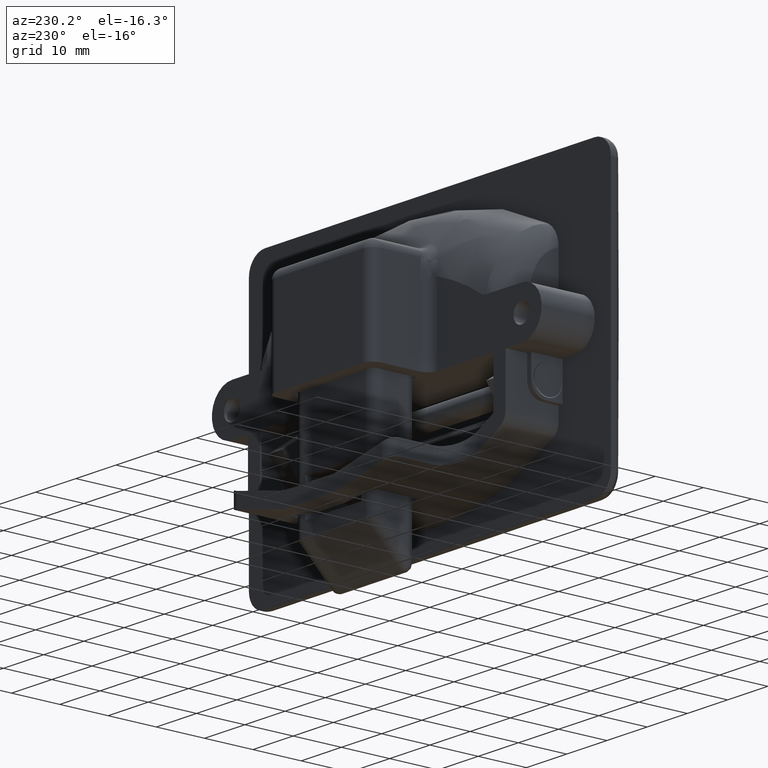
[diagram: clean part render]
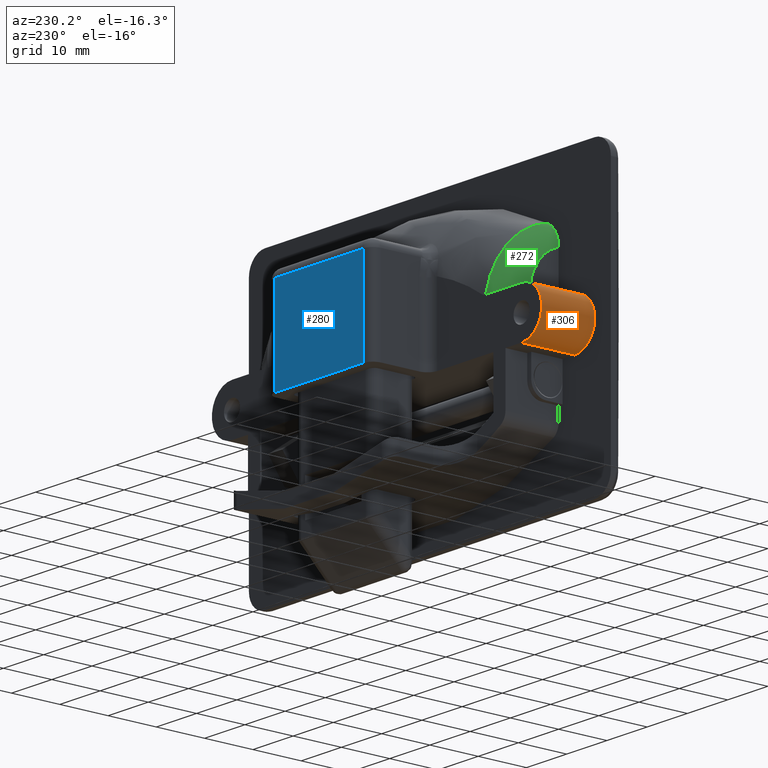
[diagram: same view with three faces highlighted in distinct colors, each labeled with its STEP entity id]
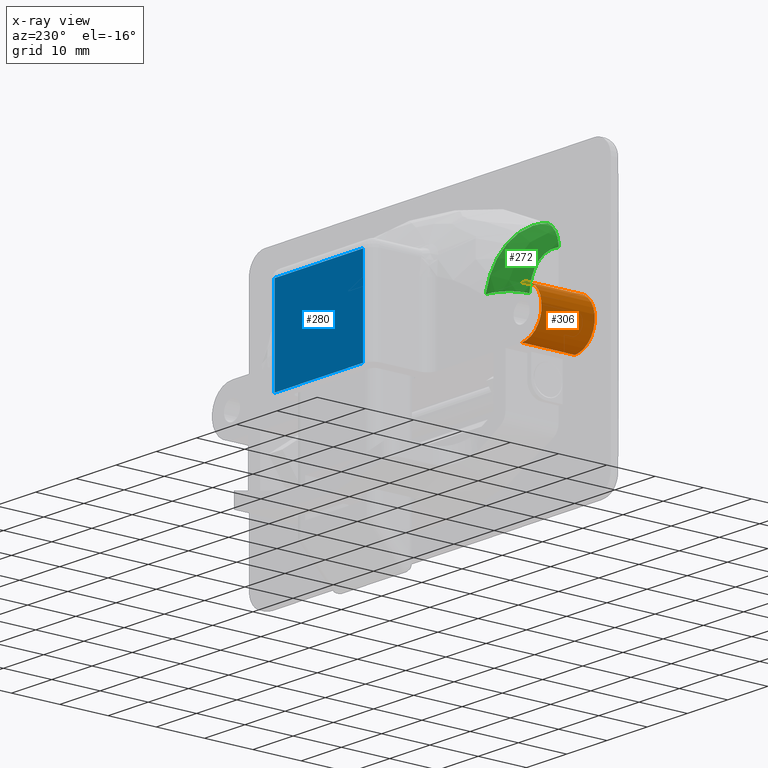
[diagram: x-ray of the same camera — body ghosted, the three highlighted faces saturated]
A machine part, auxiliary view with three faces highlighted in distinct colors.
The next image is the same camera in x-ray (body ghosted, the three faces saturated) — at least one of them is partly hidden behind the body in this view.
Their STEP definitions:

[orange] entity #306 — the highlighted cylindrical surface (edge-blend (fillet) strip) has radius 5 mm, axis along (0, 1, 0).
#306=ADVANCED_FACE('',(#1955),#1954,.T.);
#1954=CYLINDRICAL_SURFACE('',#4489,5.00000000000E+00);
#1955=FACE_OUTER_BOUND('',#4490,.T.);
#4486=CARTESIAN_POINT('',(-3.60000000000E+01,1.00000000000E+03,3.00000000000E+01));
#4487=DIRECTION('',(-0.00000000000E+00,1.00000000000E+00,-0.00000000000E+00));
#4488=DIRECTION('',(-0.00000000000E+00,-0.00000000000E+00,1.00000000000E+00));
#4489=AXIS2_PLACEMENT_3D('',#4486,#4487,#4488);
#4490=EDGE_LOOP('',(#5872,#5873,#5874,#5875));
#5872=ORIENTED_EDGE('',*,*,#6531,.F.);
#5873=ORIENTED_EDGE('',*,*,#6673,.F.);
#5874=ORIENTED_EDGE('',*,*,#6560,.T.);
#5875=ORIENTED_EDGE('',*,*,#6672,.T.);
#6531=EDGE_CURVE('',#9091,#9098,#9099,.T.);
#6560=EDGE_CURVE('',#9295,#9288,#9296,.T.);
#6672=EDGE_CURVE('',#9288,#9098,#10027,.T.);
#6673=EDGE_CURVE('',#9295,#9091,#10033,.T.);
#9091=VERTEX_POINT('',#12362);
#9098=VERTEX_POINT('',#12366);
#9099=CIRCLE('',#12370,5.00000000000E+00);
#9288=VERTEX_POINT('',#12536);
#9295=VERTEX_POINT('',#12540);
#9296=CIRCLE('',#12544,5.00000000000E+00);
#10027=LINE('',#13133,#13134);
#10033=LINE('',#13136,#13137);
#12362=CARTESIAN_POINT('',(-3.60000000000E+01,0.00000000000E+00,3.50000000000E+01));
#12366=CARTESIAN_POINT('',(-3.60000000000E+01,0.00000000000E+00,2.50000000000E+01));
#12367=CARTESIAN_POINT('',(-3.60000000000E+01,0.00000000000E+00,3.00000000000E+01));
#12368=DIRECTION('',(0.00000000000E+00,-1.00000000000E+00,0.00000000000E+00));
#12369=DIRECTION('',(-0.00000000000E+00,-0.00000000000E+00,1.00000000000E+00));
#12370=AXIS2_PLACEMENT_3D('',#12367,#12368,#12369);
#12536=CARTESIAN_POINT('',(-3.60000000000E+01,1.10000000000E+01,2.50000000000E+01));
#12540=CARTESIAN_POINT('',(-3.60000000000E+01,1.10000000000E+01,3.50000000000E+01));
#12541=CARTESIAN_POINT('',(-3.60000000000E+01,1.10000000000E+01,3.00000000000E+01));
#12542=DIRECTION('',(0.00000000000E+00,-1.00000000000E+00,0.00000000000E+00));
#12543=DIRECTION('',(-0.00000000000E+00,-0.00000000000E+00,1.00000000000E+00));
#12544=AXIS2_PLACEMENT_3D('',#12541,#12542,#12543);
#13133=CARTESIAN_POINT('',(-3.60000000000E+01,1.10000000000E+01,2.50000000000E+01));
#13134=VECTOR('',#13135,1.10000000000E+01);
#13135=DIRECTION('',(0.00000000000E+00,-1.00000000000E+00,0.00000000000E+00));
#13136=CARTESIAN_POINT('',(-3.60000000000E+01,1.10000000000E+01,3.50000000000E+01));
#13137=VECTOR('',#13138,1.10000000000E+01);
#13138=DIRECTION('',(0.00000000000E+00,-1.00000000000E+00,0.00000000000E+00));

[blue] entity #280 — the highlighted planar face has unit normal (0, -1, 0).
#280=ADVANCED_FACE('',(#1692),#1691,.F.);
#1691=PLANE('',#4237);
#1692=FACE_OUTER_BOUND('',#4238,.T.);
#4234=CARTESIAN_POINT('',(-1.32000000000E+01,2.30000000000E+01,2.31000000000E+01));
#4235=DIRECTION('',(0.00000000000E+00,-1.00000000000E+00,0.00000000000E+00));
#4236=DIRECTION('',(1.00000000000E+00,0.00000000000E+00,0.00000000000E+00));
#4237=AXIS2_PLACEMENT_3D('',#4234,#4235,#4236);
#4238=EDGE_LOOP('',(#5718,#5719,#5720,#5721));
#5718=ORIENTED_EDGE('',*,*,#6587,.T.);
#5719=ORIENTED_EDGE('',*,*,#6588,.T.);
#5720=ORIENTED_EDGE('',*,*,#6589,.T.);
#5721=ORIENTED_EDGE('',*,*,#6590,.T.);
#6587=EDGE_CURVE('',#9473,#9474,#9475,.T.);
#6588=EDGE_CURVE('',#9474,#9481,#9482,.T.);
#6589=EDGE_CURVE('',#9481,#9488,#9489,.T.);
#6590=EDGE_CURVE('',#9488,#9473,#9495,.T.);
#9473=VERTEX_POINT('',#12691);
#9474=VERTEX_POINT('',#12692);
#9475=LINE('',#12693,#12694);
#9481=VERTEX_POINT('',#12696);
#9482=LINE('',#12697,#12698);
#9488=VERTEX_POINT('',#12700);
#9489=LINE('',#12701,#12702);
#9495=LINE('',#12704,#12705);
#12691=CARTESIAN_POINT('',(-1.10000000000E+01,2.30000000000E+01,4.40000000000E+01));
#12692=CARTESIAN_POINT('',(1.10000000000E+01,2.30000000000E+01,4.40000000000E+01));
#12693=CARTESIAN_POINT('',(-1.10000000000E+01,2.30000000000E+01,4.40000000000E+01));
#12694=VECTOR('',#12695,2.20000000000E+01);
#12695=DIRECTION('',(1.00000000000E+00,0.00000000000E+00,0.00000000000E+00));
#12696=CARTESIAN_POINT('',(1.10000000000E+01,2.30000000000E+01,2.50000000001E+01));
#12697=CARTESIAN_POINT('',(1.10000000000E+01,2.30000000000E+01,4.40000000000E+01));
#12698=VECTOR('',#12699,1.89999999999E+01);
#12699=DIRECTION('',(0.00000000000E+00,0.00000000000E+00,-1.00000000000E+00));
#12700=CARTESIAN_POINT('',(-1.10000000000E+01,2.30000000000E+01,2.50000000000E+01));
#12701=CARTESIAN_POINT('',(1.10000000000E+01,2.30000000000E+01,2.50000000001E+01));
#12702=VECTOR('',#12703,2.20000000000E+01);
#12703=DIRECTION('',(-1.00000000000E+00,0.00000000000E+00,-2.03134478935E-12));
#12704=CARTESIAN_POINT('',(-1.10000000000E+01,2.30000000000E+01,2.50000000000E+01));
#12705=VECTOR('',#12706,1.90000000000E+01);
#12706=DIRECTION('',(0.00000000000E+00,0.00000000000E+00,1.00000000000E+00));

[green] entity #272 — the highlighted face is a freeform B-spline surface patch.
#272=ADVANCED_FACE('',(#1610),#1609,.T.);
#1609=( BOUNDED_SURFACE() B_SPLINE_SURFACE( 3,2,((#4062,#4063,#4064),(#4065,#4066,#4067),(#4068,#4069,#4070),(#4071,#4072,#4073),(#4074,#4075,#4076),(#4077,#4078,#4079),(#4080,#4081,#4082),(#4083,#4084,#4085),(#4086,#4087,#4088),(#4089,#4090,#4091),(#4092,#4093,#4094),(#4095,#4096,#4097),(#4098,#4099,#4100),(#4101,#4102,#4103),(#4104,#4105,#4106),(#4107,#4108,#4109),(#4110,#4111,#4112),(#4113,#4114,#4115),(#4116,#4117,#4118),(#4119,#4120,#4121),(#4122,#4123,#4124),(#4125,#4126,#4127)), .UNSPECIFIED.,.F.,.F.,.F.) B_SPLINE_SURFACE_WITH_KNOTS((4,2,2,2,2,2,2,2,2,2,4),(3,3),(2.43038170120E-02,2.58408163176E-02,2.73778156232E-02,2.89148149289E-02,3.04518142345E-02,3.19888135401E-02,3.27573131929E-02,3.35258128458E-02,3.50628121514E-02,3.58313118042E-02,3.65998114570E-02),(0.00000000000E+00,1.00000000000E+00), .UNSPECIFIED. ) GEOMETRIC_REPRESENTATION_ITEM() RATIONAL_B_SPLINE_SURFACE(((1.00000000000E+00,7.10541914419E-01,1.00000000000E+00),(1.00000000000E+00,7.21099108526E-01,1.00000000000E+00),(1.00000000000E+00,7.31182044407E-01,1.00000000000E+00),(1.00000000000E+00,7.50523252889E-01,1.00000000000E+00),(1.00000000000E+00,7.59838821139E-01,1.00000000000E+00),(1.00000000000E+00,7.77181576348E-01,1.00000000000E+00),(1.00000000000E+00,7.85275113627E-01,1.00000000000E+00),(1.00000000000E+00,8.00449320352E-01,1.00000000000E+00),(1.00000000000E+00,8.07544406373E-01,1.00000000000E+00),(1.00000000000E+00,8.20731802649E-01,1.00000000000E+00),(1.00000000000E+00,8.26652848343E-01,1.00000000000E+00),(1.00000000000E+00,8.34627587997E-01,1.00000000000E+00),(1.00000000000E+00,8.37133680329E-01,1.00000000000E+00),(1.00000000000E+00,8.41845931898E-01,1.00000000000E+00),(1.00000000000E+00,8.44057978035E-01,1.00000000000E+00),(1.00000000000E+00,8.50107064797E-01,1.00000000000E+00),(1.00000000000E+00,8.53415151558E-01,1.00000000000E+00),(1.00000000000E+00,8.57343129800E-01,1.00000000000E+00),(1.00000000000E+00,8.58478629099E-01,1.00000000000E+00),(1.00000000000E+00,8.60391082610E-01,1.00000000000E+00),(1.00000000000E+00,8.61149974661E-01,1.00000000000E+00),(1.00000000000E+00,8.61717853608E-01,1.00000000000E+00))) REPRESENTATION_ITEM('') SURFACE() );
#1610=FACE_OUTER_BOUND('',#4128,.T.);
#4062=CARTESIAN_POINT('',(-3.20000000000E+01,5.99883584744E+00,3.48260414149E+01));
#4063=CARTESIAN_POINT('',(-3.20000000000E+01,1.09498868752E+01,3.48953939209E+01));
#4064=CARTESIAN_POINT('',(-2.70486981215E+01,1.09981082521E+01,3.48960693882E+01));
#4065=CARTESIAN_POINT('',(-3.20000000000E+01,5.99164131717E+00,3.53396564235E+01));
#4066=CARTESIAN_POINT('',(-3.20000000000E+01,1.07934377631E+01,3.56108757814E+01));
#4067=CARTESIAN_POINT('',(-2.71987319223E+01,1.09864171119E+01,3.56263608394E+01));
#4068=CARTESIAN_POINT('',(-3.20000000000E+01,5.95127512883E+00,3.58519553682E+01));
#4069=CARTESIAN_POINT('',(-3.20000000000E+01,1.05985902030E+01,3.63219767410E+01));
#4070=CARTESIAN_POINT('',(-2.73453366148E+01,1.09208220835E+01,3.63589603530E+01));
#4071=CARTESIAN_POINT('',(-3.20000000000E+01,5.79964237734E+00,3.68737272217E+01));
#4072=CARTESIAN_POINT('',(-3.20000000000E+01,1.01264205550E+01,3.77163611246E+01));
#4073=CARTESIAN_POINT('',(-2.76319163254E+01,1.06744188640E+01,3.78276372490E+01));
#4074=CARTESIAN_POINT('',(-3.20000000000E+01,5.68691328572E+00,3.73866975866E+01));
#4075=CARTESIAN_POINT('',(-3.20000000000E+01,9.84780624606E+00,3.84068277731E+01));
#4076=CARTESIAN_POINT('',(-2.77727984133E+01,1.04912340891E+01,3.85688317600E+01));
#4077=CARTESIAN_POINT('',(-3.20000000000E+01,5.39172433081E+00,3.83763604566E+01));
#4078=CARTESIAN_POINT('',(-3.20000000000E+01,9.21630264098E+00,3.97211196591E+01));
#4079=CARTESIAN_POINT('',(-2.80393600982E+01,1.00115520377E+01,4.00051881087E+01));
#4080=CARTESIAN_POINT('',(-3.20000000000E+01,5.20930706079E+00,3.88563232357E+01));
#4081=CARTESIAN_POINT('',(-3.20000000000E+01,8.86346034263E+00,4.03523081323E+01));
#4082=CARTESIAN_POINT('',(-2.81659943993E+01,9.71512397302E+00,4.07050040833E+01));
#4083=CARTESIAN_POINT('',(-3.20000000000E+01,4.77071005675E+00,3.97847536549E+01));
#4084=CARTESIAN_POINT('',(-3.20000000000E+01,8.07375323296E+00,4.15602676548E+01));
#4085=CARTESIAN_POINT('',(-2.84066155033E+01,9.00240384298E+00,4.20637337772E+01));
#4086=CARTESIAN_POINT('',(-3.20000000000E+01,4.51398433008E+00,4.02342064311E+01));
#4087=CARTESIAN_POINT('',(-3.20000000000E+01,7.63656842475E+00,4.21408848983E+01));
#4088=CARTESIAN_POINT('',(-2.85208449142E+01,8.58522453633E+00,4.27241049961E+01));
#4089=CARTESIAN_POINT('',(-3.20000000000E+01,3.91855974592E+00,4.10930939971E+01));
#4090=CARTESIAN_POINT('',(-3.20000000000E+01,6.66540984275E+00,4.32410432334E+01));
#4091=CARTESIAN_POINT('',(-2.87355721501E+01,7.61765958718E+00,4.39899907178E+01));
#4092=CARTESIAN_POINT('',(-3.20000000000E+01,3.58784212912E+00,4.14912353945E+01));
#4093=CARTESIAN_POINT('',(-3.20000000000E+01,6.14436133817E+00,4.37487617245E+01));
#4094=CARTESIAN_POINT('',(-2.88332666655E+01,7.08024345918E+00,4.45788371253E+01));
#4095=CARTESIAN_POINT('',(-3.20000000000E+01,3.03987891213E+00,4.20392378439E+01));
#4096=CARTESIAN_POINT('',(-3.20000000000E+01,5.30109210198E+00,4.44447760563E+01));
#4097=CARTESIAN_POINT('',(-2.89659614438E+01,6.18980323253E+00,4.53912114301E+01));
#4098=CARTESIAN_POINT('',(-3.20000000000E+01,2.84853115393E+00,4.22136605157E+01));
#4099=CARTESIAN_POINT('',(-3.20000000000E+01,5.01090245905E+00,4.46651774118E+01));
#4100=CARTESIAN_POINT('',(-2.90078724738E+01,5.87886312469E+00,4.56501265558E+01));
#4101=CARTESIAN_POINT('',(-3.20000000000E+01,2.44738155448E+00,4.25450039312E+01));
#4102=CARTESIAN_POINT('',(-3.20000000000E+01,4.40873085094E+00,4.50827594424E+01));
#4103=CARTESIAN_POINT('',(-2.90869902175E+01,5.22699502647E+00,4.61425007494E+01));
#4104=CARTESIAN_POINT('',(-3.20000000000E+01,2.23669682939E+00,4.27023630225E+01));
#4105=CARTESIAN_POINT('',(-3.20000000000E+01,4.09534933991E+00,4.52807825364E+01));
#4106=CARTESIAN_POINT('',(-2.91242980457E+01,4.88463234777E+00,4.63766149357E+01));
#4107=CARTESIAN_POINT('',(-3.20000000000E+01,1.58985993387E+00,4.31364371959E+01));
#4108=CARTESIAN_POINT('',(-3.20000000000E+01,3.14329378715E+00,4.58244516106E+01));
#4109=CARTESIAN_POINT('',(-2.92266575874E+01,3.83352239251E+00,4.70229912006E+01));
#4110=CARTESIAN_POINT('',(-3.20000000000E+01,1.13531512716E+00,4.33790857498E+01));
#4111=CARTESIAN_POINT('',(-3.20000000000E+01,2.48141864892E+00,4.61288596002E+01));
#4112=CARTESIAN_POINT('',(-2.92831056352E+01,3.09488708126E+00,4.73851141593E+01));
#4113=CARTESIAN_POINT('',(-3.20000000000E+01,4.16967787612E-01,4.36698513737E+01));
#4114=CARTESIAN_POINT('',(-3.20000000000E+01,1.44474541373E+00,4.64924535325E+01));
#4115=CARTESIAN_POINT('',(-2.93503552790E+01,1.92757265505E+00,4.78194407875E+01));
#4116=CARTESIAN_POINT('',(-3.20000000000E+01,1.71392307687E-01,4.37544958707E+01));
#4117=CARTESIAN_POINT('',(-3.20000000000E+01,1.09227691421E+00,4.65980964239E+01));
#4118=CARTESIAN_POINT('',(-2.93698464221E+01,1.52851249977E+00,4.79459642122E+01));
#4119=CARTESIAN_POINT('',(-3.20000000000E+01,-3.32830361894E-01,4.38975888622E+01));
#4120=CARTESIAN_POINT('',(-3.20000000000E+01,3.71112185025E-01,4.67764328232E+01));
#4121=CARTESIAN_POINT('',(-2.94027190071E+01,7.09150662140E-01,4.81599322397E+01));
#4122=CARTESIAN_POINT('',(-3.20000000000E+01,-5.86866662799E-01,4.39546830644E+01));
#4123=CARTESIAN_POINT('',(-3.20000000000E+01,8.72272242770E-03,4.68475886178E+01));
#4124=CARTESIAN_POINT('',(-2.94157901641E+01,2.96341667680E-01,4.82453509486E+01));
#4125=CARTESIAN_POINT('',(-3.20000000000E+01,-8.41779271752E-01,4.39974780632E+01));
#4126=CARTESIAN_POINT('',(-3.20000000000E+01,-3.54350486821E-01,4.69008954270E+01));
#4127=CARTESIAN_POINT('',(-2.94255765923E+01,-1.17891316597E-01,4.83093876661E+01));
#4128=EDGE_LOOP('',(#5658,#5659,#5660,#5661));
#5658=ORIENTED_EDGE('',*,*,#6528,.F.);
#5659=ORIENTED_EDGE('',*,*,#6544,.F.);
#5660=ORIENTED_EDGE('',*,*,#6545,.F.);
#5661=ORIENTED_EDGE('',*,*,#6546,.F.);
#6528=EDGE_CURVE('',#9070,#9077,#9078,.T.);
#6544=EDGE_CURVE('',#9188,#9070,#9189,.T.);
#6545=EDGE_CURVE('',#9195,#9188,#9196,.T.);
#6546=EDGE_CURVE('',#9077,#9195,#9202,.T.);
#9070=VERTEX_POINT('',#12338);
#9077=VERTEX_POINT('',#12343);
#9078=(BOUNDED_CURVE() B_SPLINE_CURVE(3,(#12344,#12345,#12346,#12347,#12348,#12349,#12350,#12351,#12352,#12353,#12354,#12355,#12356,#12357),.UNSPECIFIED.,.F.,.F.) B_SPLINE_CURVE_WITH_KNOTS((4,2,2,2,2,2,4),(0.00000000000E+00,1.34919558329E-03,2.02379337494E-03,2.69839116658E-03,4.04758674987E-03,4.72218454152E-03,5.39678233316E-03),.UNSPECIFIED.) CURVE() GEOMETRIC_REPRESENTATION_ITEM() RATIONAL_B_SPLINE_CURVE((1.00000000000E+00,1.00000000000E+00,1.00000000000E+00,1.00000000000E+00,1.00000000000E+00,1.00000000000E+00,1.00000000000E+00,1.00000000000E+00,1.00000000000E+00,1.00000000000E+00,1.00000000000E+00,1.00000000000E+00,1.00000000000E+00,1.00000000000E+00)) REPRESENTATION_ITEM('') );
#9188=VERTEX_POINT('',#12421);
#9189=(BOUNDED_CURVE() B_SPLINE_CURVE(3,(#12422,#12423,#12424,#12425,#12426,#12427,#12428,#12429,#12430,#12431,#12432,#12433,#12434,#12435,#12436,#12437,#12438,#12439,#12440,#12441,#12442,#12443,#12444,#12445),.UNSPECIFIED.,.F.,.F.) B_SPLINE_CURVE_WITH_KNOTS((4,2,2,2,2,2,2,2,2,2,2,4),(0.00000000000E+00,2.36495131429E-03,3.54742697144E-03,4.72990262859E-03,7.09485394288E-03,8.27732960003E-03,9.45980525717E-03,1.18247565715E-02,1.30072322286E-02,1.41897078858E-02,1.65546592001E-02,1.89196105143E-02),.UNSPECIFIED.) CURVE() GEOMETRIC_REPRESENTATION_ITEM() RATIONAL_B_SPLINE_CURVE((1.00000000000E+00,1.00000000000E+00,1.00000000000E+00,1.00000000000E+00,1.00000000000E+00,1.00000000000E+00,1.00000000000E+00,1.00000000000E+00,1.00000000000E+00,1.00000000000E+00,1.00000000000E+00,1.00000000000E+00,1.00000000000E+00,1.00000000000E+00,1.00000000000E+00,1.00000000000E+00,1.00000000000E+00,1.00000000000E+00,1.00000000000E+00,1.00000000000E+00,1.00000000000E+00,1.00000000000E+00,1.00000000000E+00,1.00000000000E+00)) REPRESENTATION_ITEM('') );
#9195=VERTEX_POINT('',#12446);
#9196=(BOUNDED_CURVE() B_SPLINE_CURVE(3,(#12447,#12448,#12449,#12450,#12451,#12452,#12453,#12454,#12455,#12456,#12457,#12458,#12459,#12460,#12461,#12462,#12463,#12464,#12465,#12466),.UNSPECIFIED.,.F.,.F.) B_SPLINE_CURVE_WITH_KNOTS((4,2,2,2,2,2,2,2,2,4),(9.54097911787E-18,9.67770094829E-04,1.45165514224E-03,1.93554018966E-03,2.90331028449E-03,3.87108037932E-03,4.83885047415E-03,5.80662056897E-03,6.77439066380E-03,7.74216075863E-03),.UNSPECIFIED.) CURVE() GEOMETRIC_REPRESENTATION_ITEM() RATIONAL_B_SPLINE_CURVE((1.00000000000E+00,1.00000000000E+00,1.00000000000E+00,1.00000000000E+00,1.00000000000E+00,1.00000000000E+00,1.00000000000E+00,1.00000000000E+00,1.00000000000E+00,1.00000000000E+00,1.00000000000E+00,1.00000000000E+00,1.00000000000E+00,1.00000000000E+00,1.00000000000E+00,1.00000000000E+00,1.00000000000E+00,1.00000000000E+00,1.00000000000E+00,1.00000000000E+00)) REPRESENTATION_ITEM('') );
#9202=(BOUNDED_CURVE() B_SPLINE_CURVE(3,(#12467,#12468,#12469,#12470,#12471,#12472,#12473,#12474,#12475,#12476,#12477,#12478,#12479,#12480,#12481,#12482,#12483,#12484,#12485,#12486),.UNSPECIFIED.,.F.,.F.) B_SPLINE_CURVE_WITH_KNOTS((4,2,2,2,2,2,2,2,2,4),(6.69008660638E-19,1.41561493267E-03,2.12342239901E-03,2.83122986534E-03,4.24684479802E-03,4.95465226435E-03,5.66245973069E-03,8.49368959603E-03,9.90930452870E-03,1.13249194614E-02),.UNSPECIFIED.) CURVE() GEOMETRIC_REPRESENTATION_ITEM() RATIONAL_B_SPLINE_CURVE((1.00000000000E+00,1.00000000000E+00,1.00000000000E+00,1.00000000000E+00,1.00000000000E+00,1.00000000000E+00,1.00000000000E+00,1.00000000000E+00,1.00000000000E+00,1.00000000000E+00,1.00000000000E+00,1.00000000000E+00,1.00000000000E+00,1.00000000000E+00,1.00000000000E+00,1.00000000000E+00,1.00000000000E+00,1.00000000000E+00,1.00000000000E+00,1.00000000000E+00)) REPRESENTATION_ITEM('') );
#12338=CARTESIAN_POINT('',(-2.94227015689E+01,0.00000000000E+00,4.82905788110E+01));
#12343=CARTESIAN_POINT('',(-3.20000000000E+01,0.00000000000E+00,4.38026213322E+01));
#12344=CARTESIAN_POINT('',(-2.94227015689E+01,-7.27045269108E-16,4.82905788110E+01));
#12345=CARTESIAN_POINT('',(-2.98203683136E+01,-7.27045269108E-16,4.80668209139E+01));
#12346=CARTESIAN_POINT('',(-3.01785033988E+01,4.19068089751E-32,4.77944124651E+01));
#12347=CARTESIAN_POINT('',(-3.06586150192E+01,-0.00000000000E+00,4.73155394226E+01));
#12348=CARTESIAN_POINT('',(-3.08096643059E+01,0.00000000000E+00,4.71428925036E+01));
#12349=CARTESIAN_POINT('',(-3.10837547541E+01,-0.00000000000E+00,4.67833459290E+01));
#12350=CARTESIAN_POINT('',(-3.12078739202E+01,0.00000000000E+00,4.65956035084E+01));
#12351=CARTESIAN_POINT('',(-3.15422996509E+01,-0.00000000000E+00,4.60089906703E+01));
#12352=CARTESIAN_POINT('',(-3.17153788117E+01,0.00000000000E+00,4.55817704635E+01));
#12353=CARTESIAN_POINT('',(-3.18857109935E+01,-0.00000000000E+00,4.49282563808E+01));
#12354=CARTESIAN_POINT('',(-3.19283589851E+01,0.00000000000E+00,4.47072184350E+01));
#12355=CARTESIAN_POINT('',(-3.19855441782E+01,-0.00000000000E+00,4.42587762281E+01));
#12356=CARTESIAN_POINT('',(-3.20000000000E+01,-0.00000000000E+00,4.40306007455E+01));
#12357=CARTESIAN_POINT('',(-3.20000000000E+01,0.00000000000E+00,4.38026213322E+01));
#12421=CARTESIAN_POINT('',(-2.70700268787E+01,1.10000000000E+01,3.50000000000E+01));
#12422=CARTESIAN_POINT('',(-2.70700236969E+01,1.09960783903E+01,3.50000000000E+01));
#12423=CARTESIAN_POINT('',(-2.72291967383E+01,1.09781727341E+01,3.57766902681E+01));
#12424=CARTESIAN_POINT('',(-2.73825346770E+01,1.08994950631E+01,3.65463409681E+01));
#12425=CARTESIAN_POINT('',(-2.76045947007E+01,1.06899556439E+01,3.76900494330E+01));
#12426=CARTESIAN_POINT('',(-2.76775294972E+01,1.06044189871E+01,3.80707673565E+01));
#12427=CARTESIAN_POINT('',(-2.78196689401E+01,1.04033671212E+01,3.88222107846E+01));
#12428=CARTESIAN_POINT('',(-2.78885988658E+01,1.02883770386E+01,3.91914414739E+01));
#12429=CARTESIAN_POINT('',(-2.80893970204E+01,9.90083760294E+00,4.02799749308E+01));
#12430=CARTESIAN_POINT('',(-2.82153051133E+01,9.58601313537E+00,4.09802532170E+01));
#12431=CARTESIAN_POINT('',(-2.83933073020E+01,9.02702909579E+00,4.19913867204E+01));
#12432=CARTESIAN_POINT('',(-2.84508232921E+01,8.82617175783E+00,4.23218513959E+01));
#12433=CARTESIAN_POINT('',(-2.85623012078E+01,8.39408816339E+00,4.29689835031E+01));
#12434=CARTESIAN_POINT('',(-2.86165313509E+01,8.16151446457E+00,4.32872520607E+01));
#12435=CARTESIAN_POINT('',(-2.87714934198E+01,7.42701700135E+00,4.42054731006E+01));
#12436=CARTESIAN_POINT('',(-2.88646502698E+01,6.88948587484E+00,4.47694690579E+01));
#12437=CARTESIAN_POINT('',(-2.89903932374E+01,6.01036387285E+00,4.55419646054E+01));
#12438=CARTESIAN_POINT('',(-2.90299608975E+01,5.70512062428E+00,4.57871481081E+01));
#12439=CARTESIAN_POINT('',(-2.91044302729E+01,5.06918689627E+00,4.62517959144E+01));
#12440=CARTESIAN_POINT('',(-2.91392644324E+01,4.73864198894E+00,4.64708541065E+01));
#12441=CARTESIAN_POINT('',(-2.92348019326E+01,3.72882509375E+00,4.70751623393E+01));
#12442=CARTESIAN_POINT('',(-2.92874266051E+01,3.02501993593E+00,4.74129665414E+01));
#12443=CARTESIAN_POINT('',(-2.93715009176E+01,1.55520309741E+00,4.79560645333E+01));
#12444=CARTESIAN_POINT('',(-2.94029823338E+01,7.84062985479E-01,4.81615973871E+01));
#12445=CARTESIAN_POINT('',(-2.94227015689E+01,-2.74110314157E-16,4.82905788110E+01));
#12446=CARTESIAN_POINT('',(-3.20000000000E+01,5.99511957681E+00,3.50000000000E+01));
#12447=CARTESIAN_POINT('',(-3.20000000000E+01,5.99511957681E+00,3.50000000000E+01));
#12448=CARTESIAN_POINT('',(-3.20000000000E+01,6.32235273793E+00,3.50000000000E+01));
#12449=CARTESIAN_POINT('',(-3.19682113770E+01,6.64417307667E+00,3.50000000000E+01));
#12450=CARTESIAN_POINT('',(-3.18747923861E+01,7.11911585680E+00,3.50000000000E+01));
#12451=CARTESIAN_POINT('',(-3.18359744324E+01,7.27612269248E+00,3.50000000000E+01));
#12452=CARTESIAN_POINT('',(-3.17426447052E+01,7.58746409148E+00,3.50000000000E+01));
#12453=CARTESIAN_POINT('',(-3.16878361080E+01,7.74233149315E+00,3.50000000000E+01));
#12454=CARTESIAN_POINT('',(-3.15030534377E+01,8.19314701726E+00,3.50000000000E+01));
#12455=CARTESIAN_POINT('',(-3.13522633583E+01,8.47839408072E+00,3.50000000000E+01));
#12456=CARTESIAN_POINT('',(-3.09961148031E+01,9.01864680840E+00,3.50000000000E+01));
#12457=CARTESIAN_POINT('',(-3.07886051981E+01,9.27504464447E+00,3.50000000000E+01));
#12458=CARTESIAN_POINT('',(-3.03348813467E+01,9.73568436476E+00,3.50000000000E+01));
#12459=CARTESIAN_POINT('',(-3.00873272165E+01,9.94275523462E+00,3.50000000000E+01));
#12460=CARTESIAN_POINT('',(-2.95500664982E+01,1.03095360424E+01,3.50000000000E+01));
#12461=CARTESIAN_POINT('',(-2.92626551694E+01,1.04668570627E+01,3.50000000000E+01));
#12462=CARTESIAN_POINT('',(-2.86694026510E+01,1.07206175252E+01,3.50000000000E+01));
#12463=CARTESIAN_POINT('',(-2.83601017307E+01,1.08190798807E+01,3.50000000000E+01));
#12464=CARTESIAN_POINT('',(-2.77206793234E+01,1.09551350813E+01,3.50000000000E+01));
#12465=CARTESIAN_POINT('',(-2.73972279509E+01,1.09914945972E+01,3.50000000000E+01));
#12466=CARTESIAN_POINT('',(-2.70700236969E+01,1.09960783903E+01,3.50000000000E+01));
#12467=CARTESIAN_POINT('',(-3.20000000000E+01,-8.41279272649E-16,4.38026213322E+01));
#12468=CARTESIAN_POINT('',(-3.20000000000E+01,4.59938865903E-01,4.36662318377E+01));
#12469=CARTESIAN_POINT('',(-3.20000000000E+01,8.97879229817E-01,4.34864909180E+01));
#12470=CARTESIAN_POINT('',(-3.20000000000E+01,1.52475580555E+00,4.31576929897E+01));
#12471=CARTESIAN_POINT('',(-3.20000000000E+01,1.72867304185E+00,4.30381583896E+01));
#12472=CARTESIAN_POINT('',(-3.20000000000E+01,2.12654316073E+00,4.27794529008E+01));
#12473=CARTESIAN_POINT('',(-3.20000000000E+01,2.32140966248E+00,4.26395327679E+01));
#12474=CARTESIAN_POINT('',(-3.20000000000E+01,2.88372316541E+00,4.21958622660E+01));
#12475=CARTESIAN_POINT('',(-3.20000000000E+01,3.22732577686E+00,4.18704224354E+01));
#12476=CARTESIAN_POINT('',(-3.20000000000E+01,3.70031686194E+00,4.13420381853E+01));
#12477=CARTESIAN_POINT('',(-3.20000000000E+01,3.85086609449E+00,4.11591627164E+01));
#12478=CARTESIAN_POINT('',(-3.20000000000E+01,4.13801868638E+00,4.07801854553E+01));
#12479=CARTESIAN_POINT('',(-3.20000000000E+01,4.27517473942E+00,4.05831434392E+01));
#12480=CARTESIAN_POINT('',(-3.20000000000E+01,4.91645029838E+00,3.95808289697E+01));
#12481=CARTESIAN_POINT('',(-3.20000000000E+01,5.29511117524E+00,3.87216084680E+01));
#12482=CARTESIAN_POINT('',(-3.20000000000E+01,5.69147271920E+00,3.73594951375E+01));
#12483=CARTESIAN_POINT('',(-3.20000000000E+01,5.79443051329E+00,3.68909102256E+01));
#12484=CARTESIAN_POINT('',(-3.20000000000E+01,5.93894326076E+00,3.59509045910E+01));
#12485=CARTESIAN_POINT('',(-3.20000000000E+01,5.98140775967E+00,3.54772260497E+01));
#12486=CARTESIAN_POINT('',(-3.20000000000E+01,5.99511957681E+00,3.50000000000E+01));